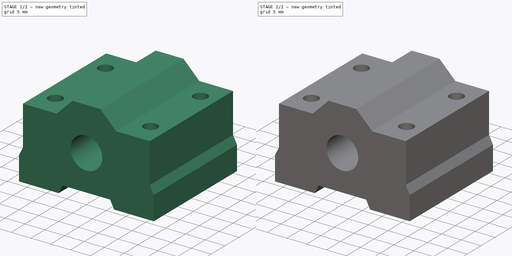
[diagram: build sequence overview — one tinted view per stage of 2, left to right]
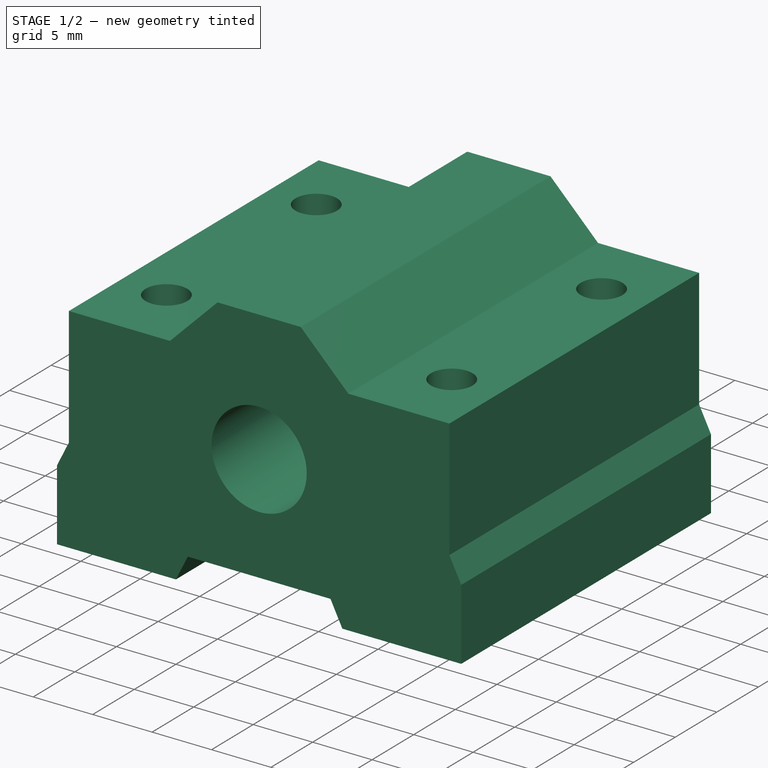
[diagram: stage 1 of 2 — iso view after this stage's code; geometry added in this stage tinted green]
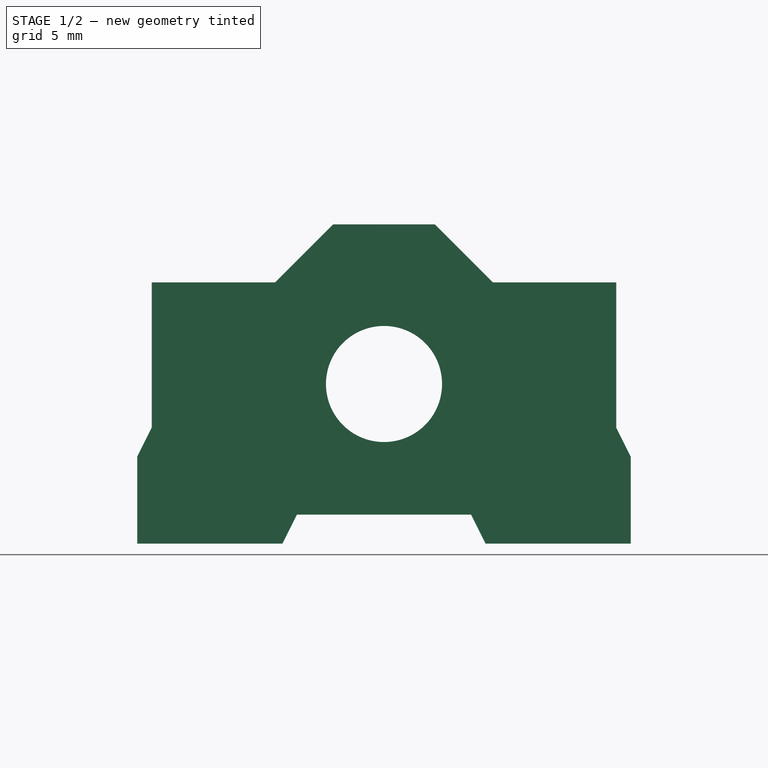
[diagram: stage 1 of 2 — front view after this stage's code; geometry added in this stage tinted green]
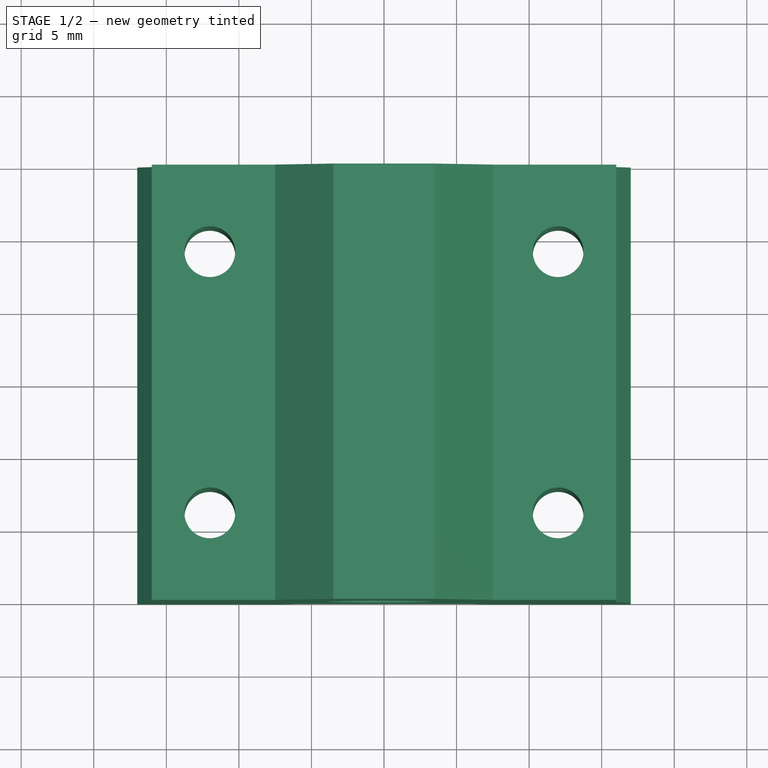
[diagram: stage 1 of 2 — top view after this stage's code; geometry added in this stage tinted green]
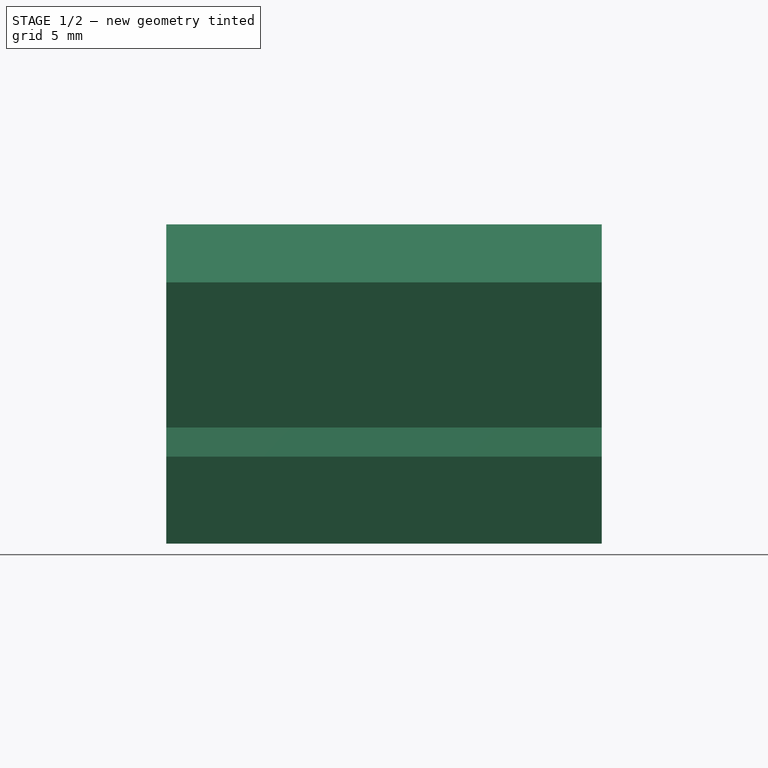
[diagram: stage 1 of 2 — right view after this stage's code; geometry added in this stage tinted green]
FCSTD DOCUMENT  (FreeCAD 0.19R)
Label: bearing_linear_8mm_horiz
License: All rights reserved
LicenseURL: http://en.wikipedia.org/wiki/All_rights_reserved
objects: PartDesign::CoordinateSystem×5, Sketcher::SketchObject×2, PartDesign::Pad×1, PartDesign::Pocket×1, PartDesign::Hole×1, PartDesign::Body×1
note: 14 computed .brp shape members not serialized (recipe doc carries the construction recipe); baked Part::Feature solids carry a one-line shape summary decoded from their .brp

FEATURE [Sketcher::SketchObject] Sketch
  FullyConstrained = false
  MapMode = 5
  Placement = pos=(0,0,0) rot=(1,0,0;1.5708rad)
  Support = -> [XZ_Plane]
  sketch-geometry (18):
    g0: LineSegment StartX=16 StartY=7 StartZ=0 EndX=16 EndY=-3 EndZ=0
    g1: LineSegment StartX=16 StartY=-3 StartZ=0 EndX=17 EndY=-5 EndZ=0
    g2: LineSegment StartX=17 StartY=-5 StartZ=0 EndX=17 EndY=-11 EndZ=0
    g3: LineSegment StartX=17 StartY=-11 StartZ=0 EndX=7 EndY=-11 EndZ=0
    g4: LineSegment StartX=7 StartY=-11 StartZ=0 EndX=6 EndY=-9 EndZ=0
    g5: LineSegment StartX=16 StartY=7 StartZ=0 EndX=7.5 EndY=7 EndZ=0
    g6: LineSegment StartX=7.5 StartY=7 StartZ=0 EndX=3.5 EndY=11 EndZ=0
    g7: Circle CenterX=0 CenterY=0 CenterZ=0 NormalX=0 NormalY=0 NormalZ=1 AngleXU=0 Radius=4
    g8: LineSegment StartX=0 StartY=0 StartZ=0 EndX=0 EndY=36.8082 EndZ=0
    g9: LineSegment StartX=-3.5 StartY=11 StartZ=0 EndX=-7.5 EndY=7 EndZ=0
    g10: LineSegment StartX=-7.5 StartY=7 StartZ=0 EndX=-16 EndY=7 EndZ=0
    g11: LineSegment StartX=-16 StartY=7 StartZ=0 EndX=-16 EndY=-3 EndZ=0
    g12: LineSegment StartX=-16 StartY=-3 StartZ=0 EndX=-17 EndY=-5 EndZ=0
    g13: LineSegment StartX=-17 StartY=-5 StartZ=0 EndX=-17 EndY=-11 EndZ=0
    g14: LineSegment StartX=-17 StartY=-11 StartZ=0 EndX=-7 EndY=-11 EndZ=0
    g15: LineSegment StartX=-7 StartY=-11 StartZ=0 EndX=-6 EndY=-9 EndZ=0
    g16: LineSegment StartX=-6 StartY=-9 StartZ=0 EndX=6 EndY=-9 EndZ=0
    g17: LineSegment StartX=3.5 StartY=11 StartZ=0 EndX=-3.5 EndY=11 EndZ=0
  constraints (45):
    c: Vertical(g0)
    c: Coincident(g1,g0)
    c: Coincident(g2,g1)
    c: Vertical(g2)
    c: Coincident(g2,g3)
    c: Horizontal(g3)
    c: Coincident(g3,g4)
    c: Coincident(g0,g5)
    c: Horizontal(g5)
    c: Coincident(g5,g6)
    c: Coincident(g7,g-1)
    c: Diameter(g7) = 8
    c: DistanceY(g2,g6) = 22
    c: DistanceY(g2,g0) = 18
    c: Coincident(g8,g7)
    c: PointOnObject(g8,g-2)
    c: Coincident(g9,g10)
    c: Coincident(g10,g11)
    c: Coincident(g11,g12)
    c: Coincident(g12,g13)
    c: Vertical(g13)
    c: Coincident(g13,g14)
    c: Horizontal(g14)
    c: Coincident(g14,g15)
    c: Coincident(g15,g16)
    c: Coincident(g16,g4)
    c: Coincident(g6,g17)
    c: Coincident(g17,g9)
    c: Symmetric(g9,g6,g8)
    c: Symmetric(g4,g15,g8)
    c: Symmetric(g9,g5,g8)
    c: Symmetric(g10,g0,g8)
    c: Symmetric(g1,g12,g8)
    c: Symmetric(g0,g11,g8)
    c: Symmetric(g14,g3,g8)
    c: DistanceY(g2,g7) = 11
    c: DistanceX(g12,g1) = 34
    c: DistanceY(g3,g4) = 2
    c: DistanceX(g16,g16) = 12
    c: DistanceX(g14,g3) = 14
    c: DistanceY(g2,g2) = 6
    c: DistanceY(g2,g0) = 8
    c: DistanceX(g0,g1) = 1
    c: DistanceX(g9,g5) = 15
    c: Angle(g17,g6) = 2.35619
FEATURE [PartDesign::Pad] Pad
  Direction = (1,1,1)
  Length = 30
  Length2 = 100
  Midplane = true
  Placement = pos=(0,0,0) rot=(1,0,0;1.5708rad)
  Profile = -> Sketch
  Refine = true
  Type = 0
FEATURE [Sketcher::SketchObject] Sketch001
  FullyConstrained = true
  MapMode = 5
  Support = -> [XY_Plane]
  sketch-geometry (4):
    g0: Circle CenterX=-12 CenterY=9 CenterZ=0 NormalX=0 NormalY=0 NormalZ=1 AngleXU=0 Radius=1.75
    g1: Circle CenterX=12 CenterY=9 CenterZ=0 NormalX=0 NormalY=0 NormalZ=1 AngleXU=0 Radius=1.75
    g2: Circle CenterX=12 CenterY=-9 CenterZ=0 NormalX=0 NormalY=0 NormalZ=1 AngleXU=0 Radius=1.75
    g3: Circle CenterX=-12 CenterY=-9 CenterZ=0 NormalX=0 NormalY=0 NormalZ=1 AngleXU=0 Radius=1.75
  constraints (10):
    c: Equal(g1,g2)
    c: Equal(g2,g0)
    c: Equal(g0,g3)
    c: Symmetric(g0,g2,g-1)
    c: Symmetric(g1,g3,g-1)
    c: Vertical(g1,g2)
    c: Horizontal(g1,g0)
    c: DistanceX(g3,g2) = 24
    c: DistanceY(g2,g1) = 18
    c: Diameter(g1) = 3.5
FEATURE [PartDesign::Pocket] Pocket
  BaseFeature = -> Pad
  Length = 5
  Length2 = 100
  Midplane = true
  Placement = pos=(0,0,0) rot=(1,0,0;1.5708rad)
  Profile = -> Sketch001
  Refine = true
  Type = 1
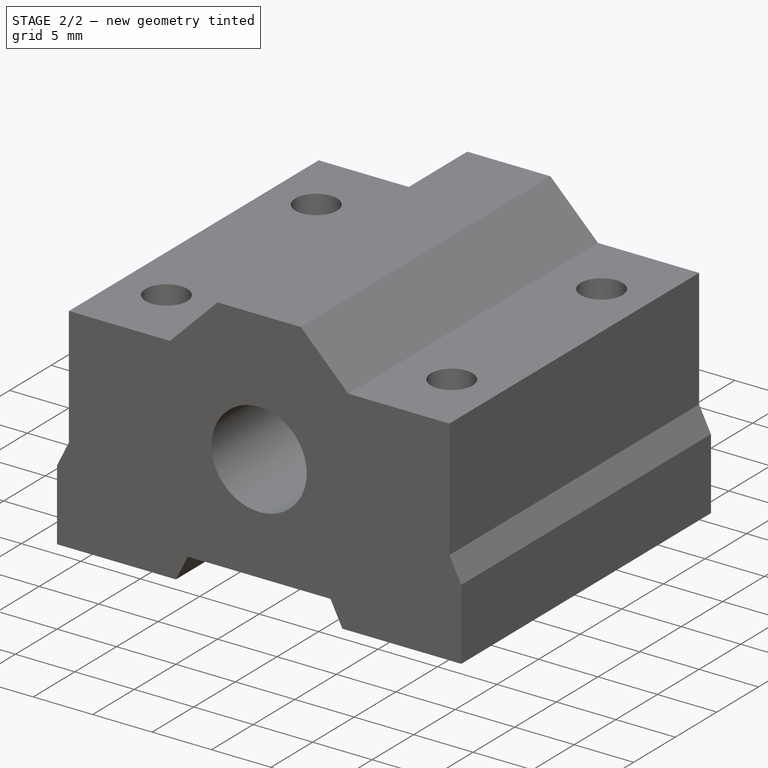
[diagram: stage 2 of 2 — iso view after this stage's code; geometry added in this stage tinted green]
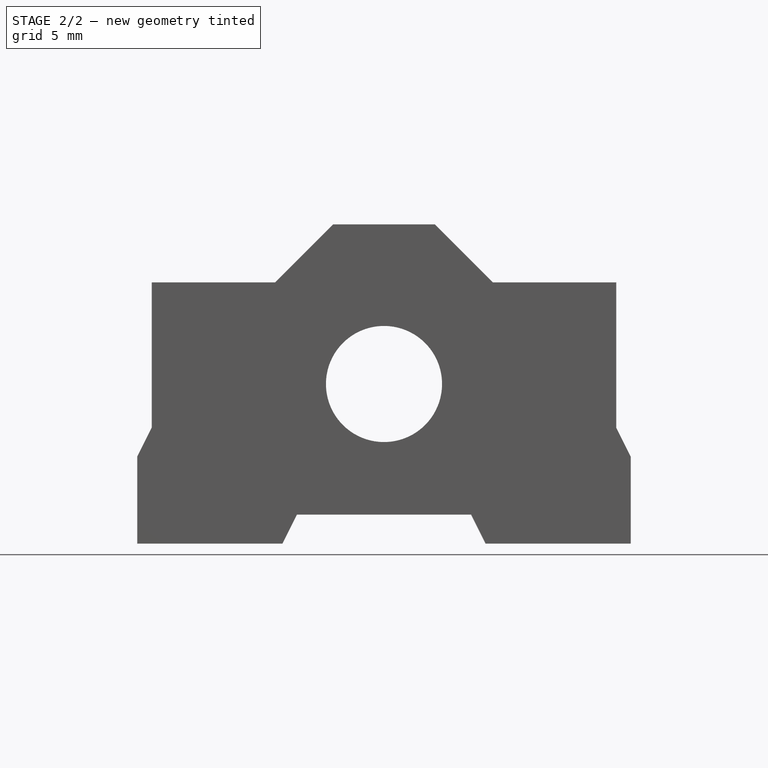
[diagram: stage 2 of 2 — front view after this stage's code; geometry added in this stage tinted green]
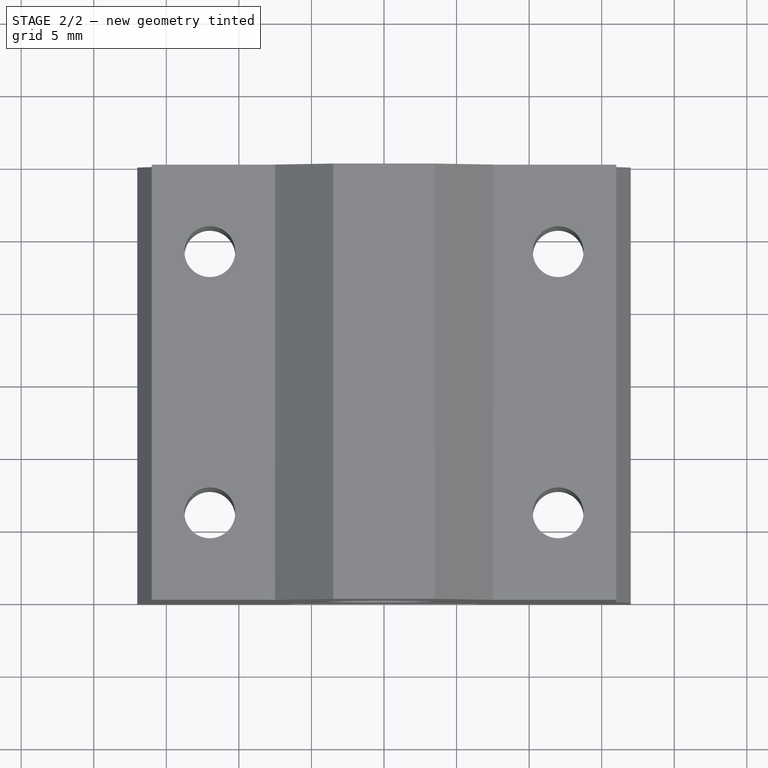
[diagram: stage 2 of 2 — top view after this stage's code; geometry added in this stage tinted green]
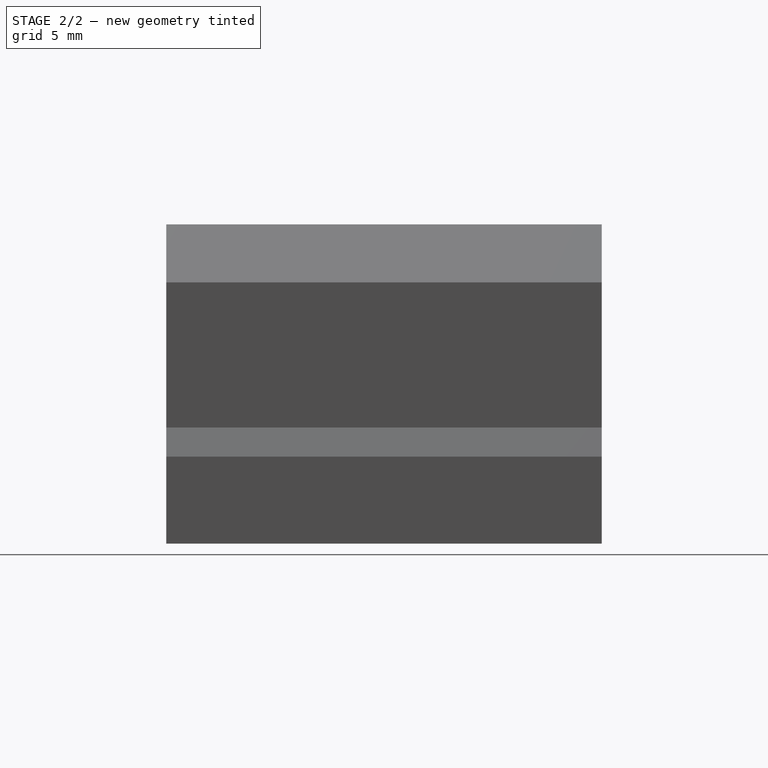
[diagram: stage 2 of 2 — right view after this stage's code; geometry added in this stage tinted green]
FEATURE [PartDesign::Hole] Hole
  BaseFeature = -> Pocket
  Depth = 25
  DepthType = 0
  Diameter = 3.3
  DrillForDepth = false
  DrillPoint = 1
  DrillPointAngle = 118
  HoleCutCountersinkAngle = 90
  HoleCutCustomValues = false
  HoleCutDepth = 0
  HoleCutDiameter = 6.1
  HoleCutType = 2
  ModelActualThread = false
  Placement = pos=(0,0,0) rot=(1,0,0;1.5708rad)
  Profile = -> Sketch001
  Refine = true
  Tapered = false
  TaperedAngle = 90
  ThreadAngle = 60
  ThreadClass = 0
  ThreadCutOffInner = 0.0757772
  ThreadCutOffOuter = 0.151554
  ThreadDirection = 0
  ThreadFit = 0
  ThreadPitch = 0.7
  ThreadSize = 11
  ThreadType = 1
  Threaded = true
FEATURE [PartDesign::CoordinateSystem] Local_CS
  AttacherType = Attacher::AttachEngine3D
  MapMode = 11
  Placement = pos=(-12,-9,-11) rot=(0,0,1;1.5708rad)
  Support = -> [Hole]
FEATURE [PartDesign::CoordinateSystem] Local_CS001
  AttacherType = Attacher::AttachEngine3D
  MapMode = 11
  Placement = pos=(12,9,-11) rot=(0,0,1;1.5708rad)
  Support = -> [Hole]
FEATURE [PartDesign::CoordinateSystem] Local_CS002
  AttacherType = Attacher::AttachEngine3D
FEATURE [PartDesign::CoordinateSystem] Local_CS003
  AttacherType = Attacher::AttachEngine3D
  MapMode = 11
  Placement = pos=(12,-9,-11) rot=(0,0,1;1.5708rad)
  Support = -> [Hole]
FEATURE [PartDesign::CoordinateSystem] Local_CS004
  AttacherType = Attacher::AttachEngine3D
  MapMode = 11
  Placement = pos=(-12,9,-11) rot=(0,0,1;1.5708rad)
  Support = -> [Hole]
FEATURE [PartDesign::Body] Body
  Group = -> [Sketch,Pad,Sketch001,Pocket,Hole,Local_CS,Local_CS001,Local_CS002,Local_CS003,Local_CS004]
  Origin = -> Origin
  Tip = -> Hole
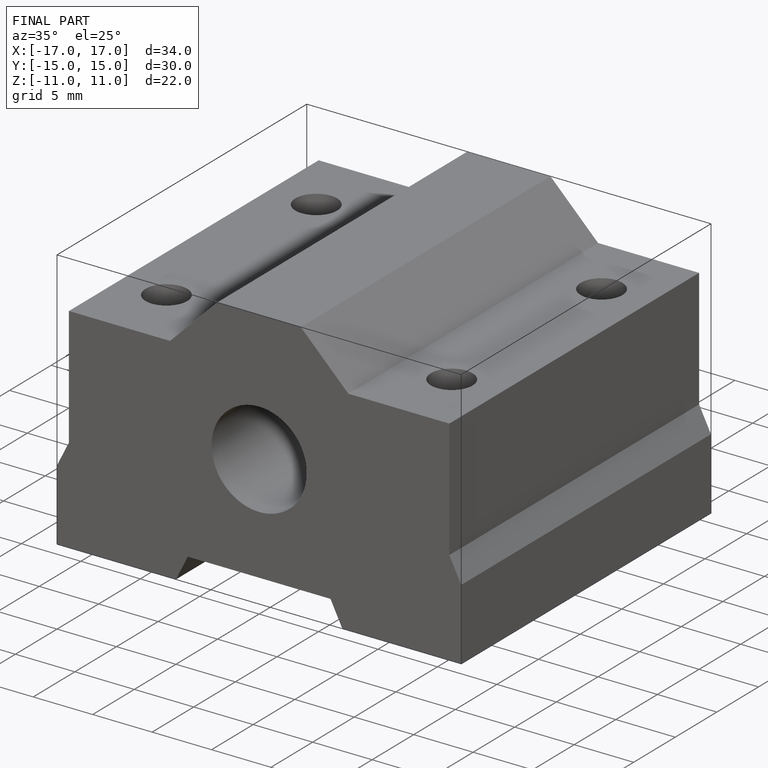
[diagram: finished part — iso view with bounding-box wireframe]
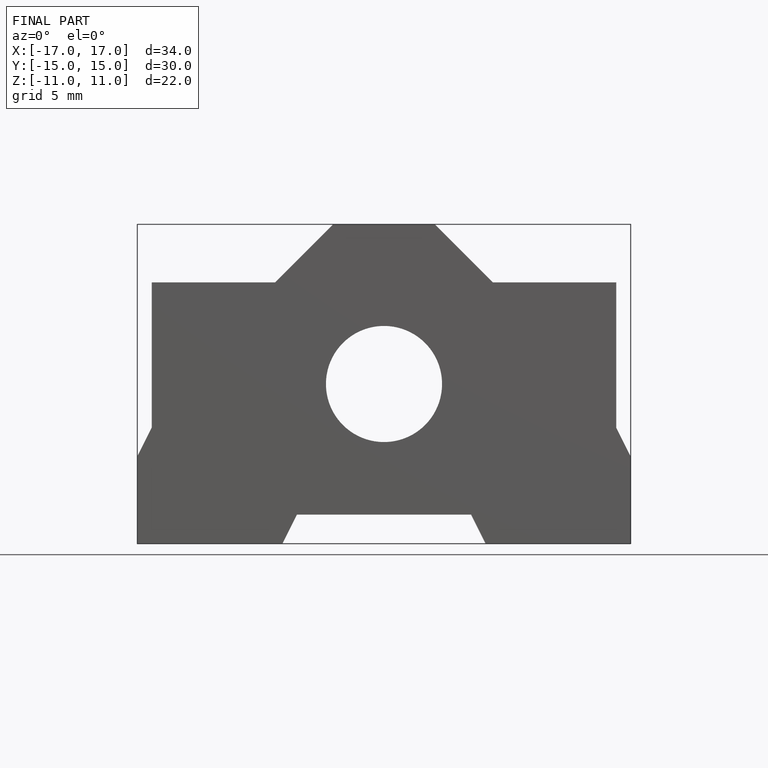
[diagram: finished part — front view with bounding-box wireframe]
